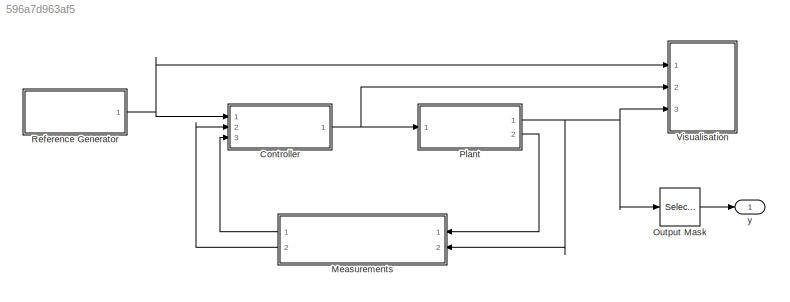
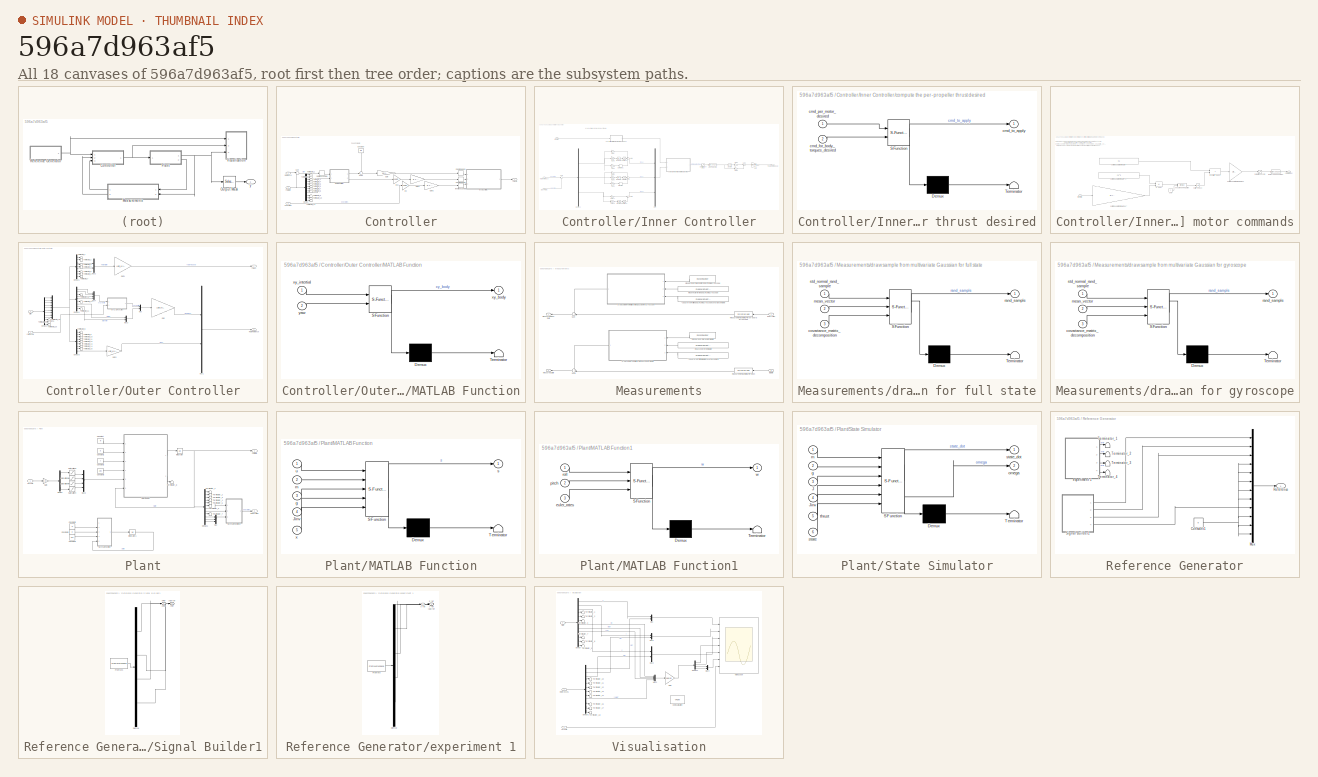
[diagram: thumbnail index - all 18 canvases of the model, root first then tree order]
MODEL slx_596a7d963af5
KIND model
CONFIG AbsTol = auto
CONFIG EnableMultiTasking = off
CONFIG FixedStep = auto
CONFIG MaxStep = auto
CONFIG MinStep = auto
CONFIG RelTol = 1e-3
CONFIG SampleTimeConstraint = Unconstrained
CONFIG Solver = VariableStepAuto
CONFIG SolverName = VariableStepAuto
CONFIG StartTime = 0.0
CONFIG StopTime = 30
WORKSPACE source: mxarray member
WORKSPACE A = [0 0 0 0 0 0 0 0 0 0 0 0 ... (144 elements, 12x12)]
WORKSPACE B = [0 0 0 0 0 37.037037037 0 0 0 0 0 0 ... (48 elements, 12x4)]
WORKSPACE J = [1.657e-05 8.3e-07 7.2e-07 8.3e-07 1.666e-05 1.8e-06 7.2e-07 1.8e-06 2.926e-05]
WORKSPACE J2 = [1.657e-05 8.3e-07 7.2e-07 8.3e-07 1.666e-05 1.8e-06 7.2e-07 1.8e-06 2.926e-05]
WORKSPACE Jinv = [60551.0873716 -2874.77601308 -1313.13007806 -2874.77601308 60562.1164038 -3654.88622001 -1313.13007806 -3654.88622001 34433.5013278]
WORKSPACE LQR_K = [0 0 0.751316534794 0 0 -0.751316534794 0 0 0.781348963993 0 0 0 ... (36 elements, 4x9)]
WORKSPACE M = [1 -0.0325269119346 -0.0325269119346 -0.00596 1 -0.0325269119346 0.0325269119346 0.00596 1 0.0325269119346 0.0325269119346 -0.00596 ... (16 elements, 4x4)]
WORKSPACE Minv = [0.25 0.25 0.25 0.25 -7.68594327377 -7.68594327377 7.68594327377 7.68594327377 -7.68594327377 7.68594327377 7.68594327377 -7.68594327377 ... (16 elements, 4x4)]
WORKSPACE NON_LIN_SIM = 1
WORKSPACE T_inner = 0.002
WORKSPACE T_outer = 0.005
WORKSPACE c1 = 6.487e-06
WORKSPACE c2 = 1.3385e-10
WORKSPACE cmd_max = 65535
WORKSPACE cmd_min = 0
WORKSPACE g = 9.81
WORKSPACE m = 0.027
WORKSPACE maxthrust = 0.1597
WORKSPACE measurement_noise_full_state_covariance_decomposition = [0 0 0 0 0 0 0 0 0 0 0 0 ... (144 elements, 12x12)]
WORKSPACE measurement_noise_full_state_covariance_matrix = [0.01 0.01 0 0 0 0 0 0 0 0 0 0 ... (144 elements, 12x12)]
WORKSPACE measurement_noise_full_state_inclusion_multiplier = 1
WORKSPACE measurement_noise_full_state_mean = [0 0 0 0 0 0 0 0 0 0 0 0]
WORKSPACE measurement_noise_full_state_seed = [50416496 3784971485 939965089 4208839476 1799084395 2945229278 4150368429 1541783849 3738425207 307511819 582526184 4040541638]
WORKSPACE measurement_noise_full_state_var = [2.5e-05 2.5e-05 0.0001 0.0001 0.0001 0.0004 3.04617419787e-06 3.04617419787e-06 1.21846967915e-05 1.21846967915e-05 1.21846967915e-05 4.87387871659e-05]
WORKSPACE measurement_noise_gyroscope_covariance_decomposition = [0.0174532925199 0 0 0 0.0174532925199 0 0 0 0.0174532925199]
WORKSPACE measurement_noise_gyroscope_covariance_matrix = [0.000304617419787 0 0 0 0.000304617419787 0 0 0 0.000304617419787]
WORKSPACE measurement_noise_gyroscope_mean = [0 0 0]
WORKSPACE measurement_noise_gyroscope_seed = [622717969 596201829 2986222409]
WORKSPACE measurement_noise_gyroscope_stddev = [0.0174532925199 0.0174532925199 0.0174532925199]
WORKSPACE measurement_noise_gyroscope_var = [0.000304617419787 0.000304617419787 0.000304617419787]
WORKSPACE nrotor_vehicle_thrust_max = [0.1597 0.1597 0.1597 0.1597]
WORKSPACE pid_x_body_rate_integrator_limit = 33.3
WORKSPACE pid_x_body_rate_ki = 500
WORKSPACE pid_x_body_rate_kp = 250
WORKSPACE pid_y_body_rate_integrator_limit = 33.3
WORKSPACE pid_y_body_rate_ki = 500
WORKSPACE pid_y_body_rate_kp = 250
WORKSPACE pid_z_body_rate_integrator_limit = 167.7
WORKSPACE pid_z_body_rate_ki = 16.7
WORKSPACE pid_z_body_rate_kp = 120
BLOCK [SubSystem] Controller
  Ports = [3, 1]
  RequestExecContextInheritance = off
BLOCK [Constant] Controller/Constant
  NameLocation = left
  Value = m*g
BLOCK [Demux] Controller/Demux
  Outputs = 12
  Ports = [1, 12]
BLOCK [Inport] Controller/Full State
  Port = 2
  PortDimensions = 12
BLOCK [Gain] Controller/Gain
  Gain = 1/4 * [ 1 1 1 1 ]
BLOCK [Gain] Controller/Gain1
  Gain = [1 -1 -1]
BLOCK [Gain] Controller/Gain2
  Gain = [1 -1 -1]
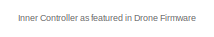
[diagram: Controller/Inner Controller - part 1/5, top left region]
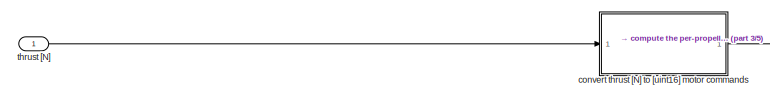
[diagram: Controller/Inner Controller - part 2/5, top left region]
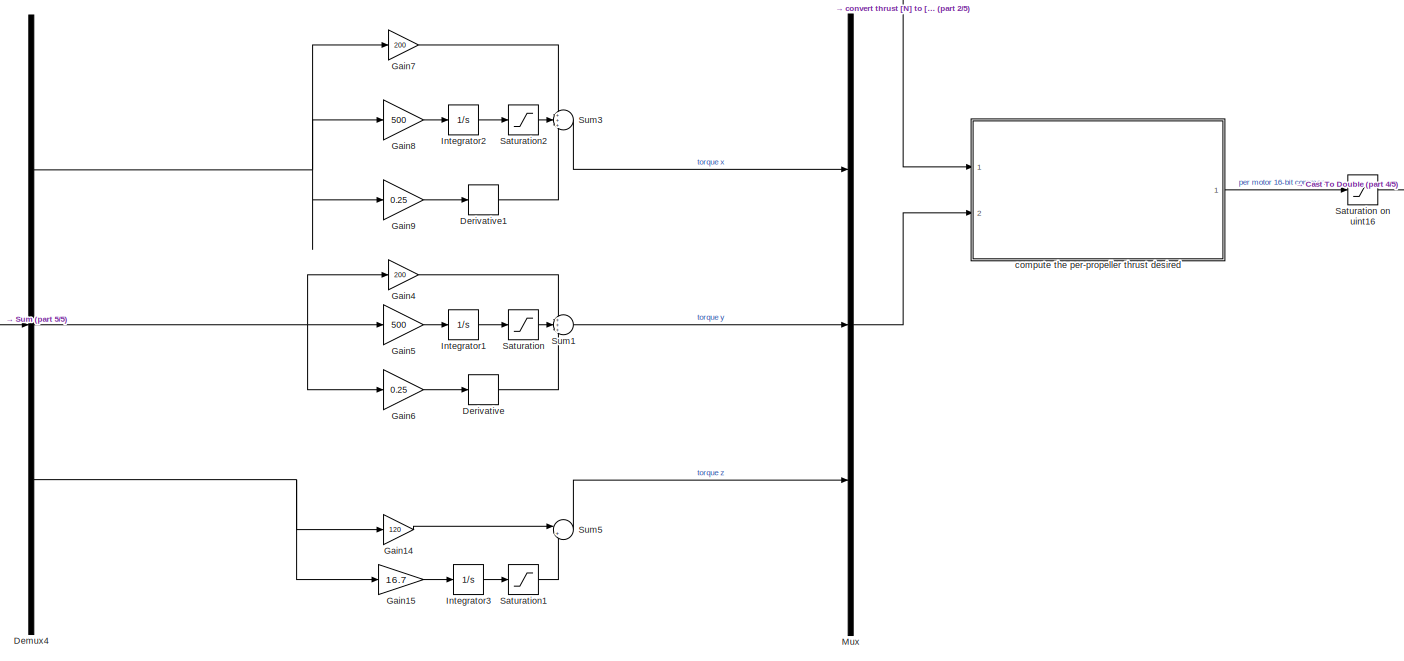
[diagram: Controller/Inner Controller - part 3/5, central region]
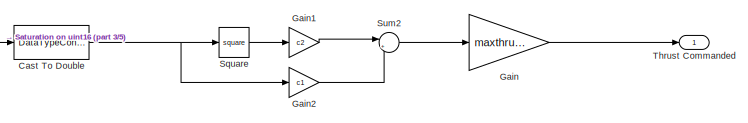
[diagram: Controller/Inner Controller - part 4/5, middle right region]
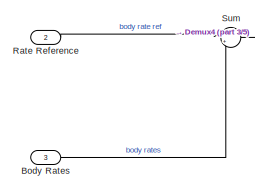
[diagram: Controller/Inner Controller - part 5/5, bottom left region]
BLOCK [SubSystem] Controller/Inner Controller
  Ports = [3, 1]
  RequestExecContextInheritance = off
BLOCK [Inport] Controller/Inner Controller/Body Rates
  Port = 3
  PortDimensions = 3
BLOCK [DataTypeConversion] Controller/Inner Controller/Cast To Double
  OutDataTypeStr = double
  RndMeth = Floor
  SaturateOnIntegerOverflow = off
BLOCK [Demux] Controller/Inner Controller/Demux4
  Outputs = 3
  Ports = [1, 3]
BLOCK [Derivative] Controller/Inner Controller/Derivative
BLOCK [Derivative] Controller/Inner Controller/Derivative1
BLOCK [Gain] Controller/Inner Controller/Gain
  Gain = maxthrust
BLOCK [Gain] Controller/Inner Controller/Gain1
  Gain = c2
BLOCK [Gain] Controller/Inner Controller/Gain14
  Gain = 120
BLOCK [Gain] Controller/Inner Controller/Gain15
  Gain = 16.7
BLOCK [Gain] Controller/Inner Controller/Gain2
  Gain = c1
BLOCK [Gain] Controller/Inner Controller/Gain4
  Gain = 200
BLOCK [Gain] Controller/Inner Controller/Gain5
  Gain = 500
BLOCK [Gain] Controller/Inner Controller/Gain6
  Gain = 0.25
BLOCK [Gain] Controller/Inner Controller/Gain7
  Gain = 200
BLOCK [Gain] Controller/Inner Controller/Gain8
  Gain = 500
BLOCK [Gain] Controller/Inner Controller/Gain9
  Gain = 0.25
BLOCK [Integrator] Controller/Inner Controller/Integrator1
  Ports = [1, 1]
BLOCK [Integrator] Controller/Inner Controller/Integrator2
  Ports = [1, 1]
BLOCK [Integrator] Controller/Inner Controller/Integrator3
  Ports = [1, 1]
BLOCK [Mux] Controller/Inner Controller/Mux
  DisplayOption = bar
  Inputs = 3
  Ports = [3, 1]
BLOCK [Inport] Controller/Inner Controller/Rate Reference
  Port = 2
  PortDimensions = 3
BLOCK [Saturate] Controller/Inner Controller/Saturation
  LowerLimit = -33.3
  UpperLimit = 33.3
BLOCK [Saturate] Controller/Inner Controller/Saturation on uint16
  LowerLimit = cmd_min
  UpperLimit = cmd_max
  ZeroCross = off
BLOCK [Saturate] Controller/Inner Controller/Saturation1
  LowerLimit = -167.7
  UpperLimit = 167.7
BLOCK [Saturate] Controller/Inner Controller/Saturation2
  LowerLimit = -33.3
  UpperLimit = 33.3
BLOCK [Math] Controller/Inner Controller/Square
  Operator = square
  Ports = [1, 1]
  SignedPower = on
BLOCK [Sum] Controller/Inner Controller/Sum
  Inputs = |+-
  Ports = [2, 1]
BLOCK [Sum] Controller/Inner Controller/Sum1
  Inputs = +++
  Ports = [3, 1]
BLOCK [Sum] Controller/Inner Controller/Sum2
  Inputs = |++
  Ports = [2, 1]
BLOCK [Sum] Controller/Inner Controller/Sum3
  Inputs = +++
  Ports = [3, 1]
BLOCK [Sum] Controller/Inner Controller/Sum5
  Inputs = |++
  Ports = [2, 1]
BLOCK [Outport] Controller/Inner Controller/Thrust Commanded
  PortDimensions = [4 1]
BLOCK [SubSystem] Controller/Inner Controller/compute the per-propeller thrust desired
  ErrorFcn = Stateflow.Translate.translate
  PermitHierarchicalResolution = ExplicitOnly
  Ports = [2, 1]
  RequestExecContextInheritance = off
  SFBlockType = MATLAB Function
  TreatAsAtomicUnit = on
BLOCK [Demux] Controller/Inner Controller/compute the per-propeller thrust desired/ Demux 
  Outputs = 1
  Ports = [1, 1]
BLOCK [S-Function] Controller/Inner Controller/compute the per-propeller thrust desired/ SFunction 
  EnableBusSupport = on
  FunctionName = sf_sfun
  PortCounts = [2 2]
  Ports = [2, 2]
  SFcnIsStateOwnerBlock = off
  SFunctionDeploymentMode = off
  Tag = Stateflow S-Function 4
BLOCK [Terminator] Controller/Inner Controller/compute the per-propeller thrust desired/ Terminator 
BLOCK [Inport] Controller/Inner Controller/compute the per-propeller thrust desired/cmd_for_body_torques_desired
  Port = 2
BLOCK [Inport] Controller/Inner Controller/compute the per-propeller thrust desired/cmd_per_motor_desired
BLOCK [Outport] Controller/Inner Controller/compute the per-propeller thrust desired/cmd_to_apply
  VectorParamsAs1DForOutWhenUnconnected = off
BLOCK [SubSystem] Controller/Inner Controller/convert thrust [N] to [uint16] motor commands
  Ports = [1, 1]
  RequestExecContextInheritance = off
BLOCK [Sum] Controller/Inner Controller/convert thrust [N] to [uint16] motor commands/-b + sqrt(b^2 - 4ac))
  IconShape = rectangular
  Ports = [2, 1]
BLOCK [DataTypeConversion] Controller/Inner Controller/convert thrust [N] to [uint16] motor commands/Data Type Conversion
  OutDataTypeStr = uint16
  RndMeth = Floor
  SaturateOnIntegerOverflow = off
BLOCK [Saturate] Controller/Inner Controller/convert thrust [N] to [uint16] motor commands/Saturation on cmd
  LowerLimit = cmd_min
  UpperLimit = cmd_max
  ZeroCross = off
BLOCK [Sum] Controller/Inner Controller/convert thrust [N] to [uint16] motor commands/b^2 - 4ac
  IconShape = rectangular
  Inputs = +-
  Ports = [2, 1]
BLOCK [Outport] Controller/Inner Controller/convert thrust [N] to [uint16] motor commands/cmd [uint16]
  VectorParamsAs1DForOutWhenUnconnected = off
BLOCK [MinMax] Controller/Inner Controller/convert thrust [N] to [uint16] motor commands/ensure non-negative
  Function = max
  Inputs = 2
  Ports = [2, 1]
BLOCK [Constant] Controller/Inner Controller/convert thrust [N] to [uint16] motor commands/part of quadratic formula: "-b"
  Value = -c1
BLOCK [Gain] Controller/Inner Controller/convert thrust [N] to [uint16] motor commands/part of quadratic formula: "1//(2a)"
  Gain = 1 / ( 2 * c2)
BLOCK [Gain] Controller/Inner Controller/convert thrust [N] to [uint16] motor commands/part of quadratic formula: "4ac"
  Gain = -(4 * c2) ./ nrotor_vehicle_thrust_max
BLOCK [Constant] Controller/Inner Controller/convert thrust [N] to [uint16] motor commands/part of quadratic formula: "b^2"
  Value = c1^2
BLOCK [Sqrt] Controller/Inner Controller/convert thrust [N] to [uint16] motor commands/sqrt(b^2 - 4ac))
BLOCK [Inport] Controller/Inner Controller/convert thrust [N] to [uint16] motor commands/thrust [N]
BLOCK [Constant] Controller/Inner Controller/convert thrust [N] to [uint16] motor commands/zero
  Value = 0
BLOCK [Inport] Controller/Inner Controller/thrust [N]
  PortDimensions = 4
BLOCK [ZeroOrderHold] Controller/Inner-loop Sample
  SampleTime = T_inner
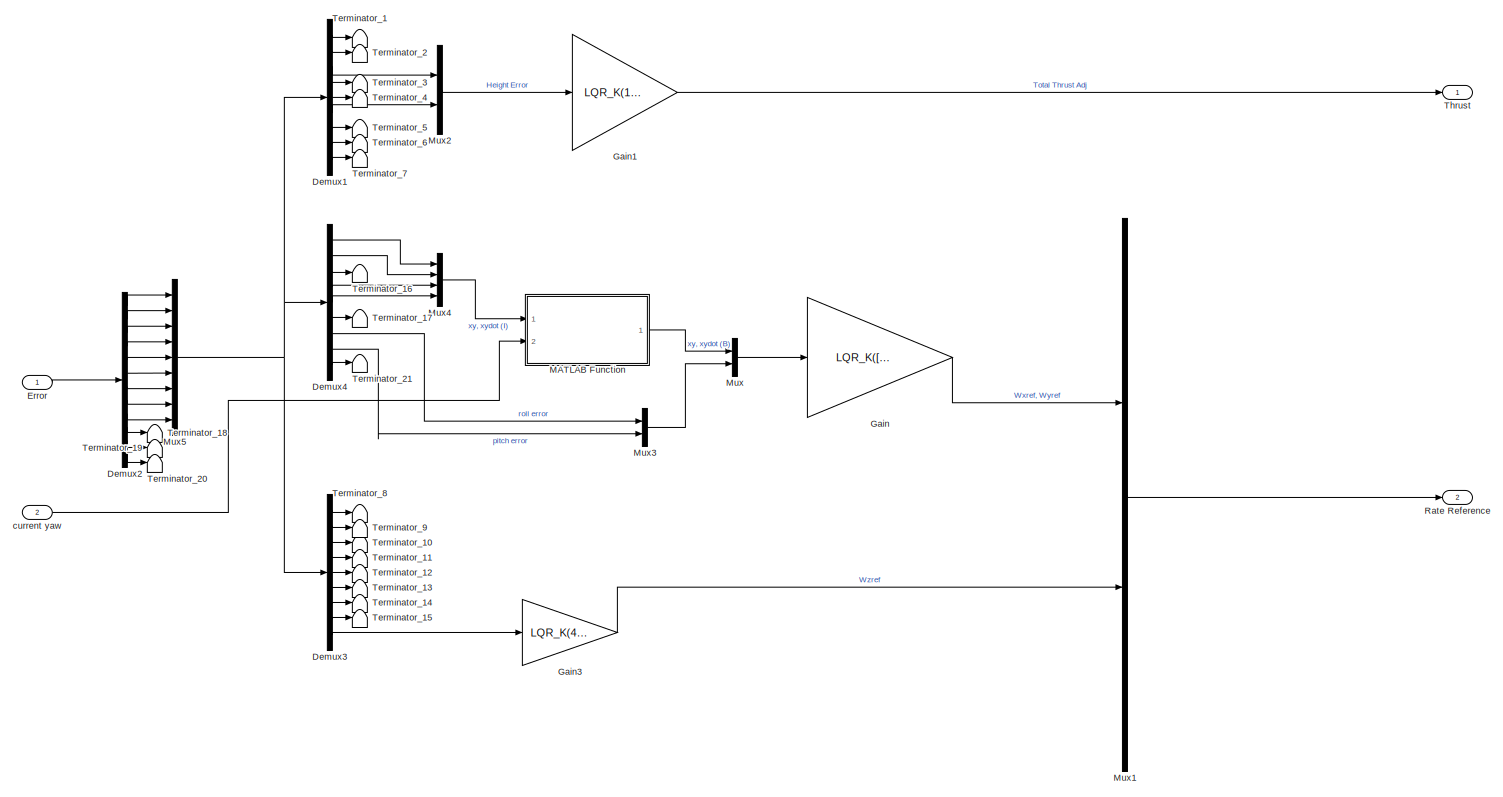
[diagram: Controller/Outer Controller - part 1/1, most of the canvas]
BLOCK [SubSystem] Controller/Outer Controller
  Ports = [2, 2]
  RequestExecContextInheritance = off
BLOCK [Demux] Controller/Outer Controller/Demux1
  Outputs = 9
  Ports = [1, 9]
BLOCK [Demux] Controller/Outer Controller/Demux2
  Outputs = 12
  Ports = [1, 12]
BLOCK [Demux] Controller/Outer Controller/Demux3
  Outputs = 9
  Ports = [1, 9]
BLOCK [Demux] Controller/Outer Controller/Demux4
  Outputs = 9
  Ports = [1, 9]
BLOCK [Inport] Controller/Outer Controller/Error
  PortDimensions = 12
BLOCK [Gain] Controller/Outer Controller/Gain
  Gain = LQR_K([2 3], [1 2 4 5 7 8])
  Multiplication = Matrix(K*u)
BLOCK [Gain] Controller/Outer Controller/Gain1
  Gain = LQR_K(1, [3, 6])
  Multiplication = Matrix(K*u)
BLOCK [Gain] Controller/Outer Controller/Gain3
  Gain = LQR_K(4,9)
  Multiplication = Matrix(K*u)
BLOCK [SubSystem] Controller/Outer Controller/MATLAB Function
  ErrorFcn = Stateflow.Translate.translate
  PermitHierarchicalResolution = ExplicitOnly
  Ports = [2, 1]
  RequestExecContextInheritance = off
  SFBlockType = MATLAB Function
  TreatAsAtomicUnit = on
BLOCK [Demux] Controller/Outer Controller/MATLAB Function/ Demux 
  Outputs = 1
  Ports = [1, 1]
BLOCK [S-Function] Controller/Outer Controller/MATLAB Function/ SFunction 
  EnableBusSupport = on
  FunctionName = sf_sfun
  PortCounts = [2 2]
  Ports = [2, 2]
  SFcnIsStateOwnerBlock = off
  SFunctionDeploymentMode = off
  Tag = Stateflow S-Function 1
BLOCK [Terminator] Controller/Outer Controller/MATLAB Function/ Terminator 
BLOCK [Outport] Controller/Outer Controller/MATLAB Function/xy_body
BLOCK [Inport] Controller/Outer Controller/MATLAB Function/xy_intertial
BLOCK [Inport] Controller/Outer Controller/MATLAB Function/yaw
  Port = 2
BLOCK [Mux] Controller/Outer Controller/Mux
  DisplayOption = bar
  Inputs = 2
  Ports = [2, 1]
BLOCK [Mux] Controller/Outer Controller/Mux1
  DisplayOption = bar
  Inputs = 2
  Ports = [2, 1]
BLOCK [Mux] Controller/Outer Controller/Mux2
  DisplayOption = bar
  Inputs = 2
  Ports = [2, 1]
BLOCK [Mux] Controller/Outer Controller/Mux3
  DisplayOption = bar
  Inputs = 2
  Ports = [2, 1]
BLOCK [Mux] Controller/Outer Controller/Mux4
  DisplayOption = bar
  Ports = [4, 1]
BLOCK [Mux] Controller/Outer Controller/Mux5
  DisplayOption = bar
  Inputs = 9
  Ports = [9, 1]
BLOCK [Outport] Controller/Outer Controller/Rate Reference
  Port = 2
  PortDimensions = 3
BLOCK [Terminator] Controller/Outer Controller/Terminator_1
BLOCK [Terminator] Controller/Outer Controller/Terminator_10
BLOCK [Terminator] Controller/Outer Controller/Terminator_11
BLOCK [Terminator] Controller/Outer Controller/Terminator_12
BLOCK [Terminator] Controller/Outer Controller/Terminator_13
BLOCK [Terminator] Controller/Outer Controller/Terminator_14
BLOCK [Terminator] Controller/Outer Controller/Terminator_15
BLOCK [Terminator] Controller/Outer Controller/Terminator_16
BLOCK [Terminator] Controller/Outer Controller/Terminator_17
BLOCK [Terminator] Controller/Outer Controller/Terminator_18
BLOCK [Terminator] Controller/Outer Controller/Terminator_19
BLOCK [Terminator] Controller/Outer Controller/Terminator_2
BLOCK [Terminator] Controller/Outer Controller/Terminator_20
BLOCK [Terminator] Controller/Outer Controller/Terminator_21
BLOCK [Terminator] Controller/Outer Controller/Terminator_3
BLOCK [Terminator] Controller/Outer Controller/Terminator_4
BLOCK [Terminator] Controller/Outer Controller/Terminator_5
BLOCK [Terminator] Controller/Outer Controller/Terminator_6
BLOCK [Terminator] Controller/Outer Controller/Terminator_7
BLOCK [Terminator] Controller/Outer Controller/Terminator_8
BLOCK [Terminator] Controller/Outer Controller/Terminator_9
BLOCK [Outport] Controller/Outer Controller/Thrust
  PortDimensions = [1 1]
BLOCK [Inport] Controller/Outer Controller/current yaw
  Port = 2
BLOCK [ZeroOrderHold] Controller/Outer-loop Sample
  SampleTime = T_outer
BLOCK [Inport] Controller/Reference
  PortDimensions = 12
BLOCK [Sum] Controller/Sum
  Inputs = |+-
  Ports = [2, 1]
BLOCK [Sum] Controller/Sum1
  Inputs = ++|
  Ports = [2, 1]
BLOCK [Terminator] Controller/Terminator_1
BLOCK [Terminator] Controller/Terminator_10
BLOCK [Terminator] Controller/Terminator_11
BLOCK [Terminator] Controller/Terminator_2
BLOCK [Terminator] Controller/Terminator_3
BLOCK [Terminator] Controller/Terminator_4
BLOCK [Terminator] Controller/Terminator_5
BLOCK [Terminator] Controller/Terminator_6
BLOCK [Terminator] Controller/Terminator_7
BLOCK [Terminator] Controller/Terminator_8
BLOCK [Terminator] Controller/Terminator_9
BLOCK [Outport] Controller/Thrusts
BLOCK [ZeroOrderHold] Controller/Zero-Order Hold1
  SampleTime = T_inner
BLOCK [ZeroOrderHold] Controller/Zero-Order Hold2
  SampleTime = T_inner
BLOCK [Inport] Controller/body rates
  Port = 3
BLOCK [Gain] Controller/r2d
  Gain = 180/pi
BLOCK [Gain] Controller/r2d1
  Gain = 180/pi
BLOCK [SubSystem] Measurements
  Commented = through
  NameLocation = top
  Ports = [2, 2]
  RequestExecContextInheritance = off
BLOCK [Constant] Measurements/"square root" of the body frame gyroscope covariance matrix
  Value = measurement_noise_gyroscope_covariance_decomposition
BLOCK [Constant] Measurements/"square root" of the full state covariance matrix
  Value = measurement_noise_full_state_covariance_decomposition
BLOCK [Outport] Measurements/Measured Body Rate
  NameLocation = top
BLOCK [Outport] Measurements/Measured State
  NameLocation = top
  Port = 2
BLOCK [Sum] Measurements/Sum
  Inputs = ++|
  NameLocation = top
  Ports = [2, 1]
BLOCK [Sum] Measurements/Sum1
  Inputs = ++|
  NameLocation = top
  Ports = [2, 1]
BLOCK [Inport] Measurements/body rates
BLOCK [SubSystem] Measurements/draw sample from multivariate Gaussian for full state
  ErrorFcn = Stateflow.Translate.translate
  PermitHierarchicalResolution = ExplicitOnly
  Ports = [3, 1]
  RequestExecContextInheritance = off
  SFBlockType = MATLAB Function
  TreatAsAtomicUnit = on
BLOCK [Demux] Measurements/draw sample from multivariate Gaussian for full state/ Demux 
  Outputs = 1
  Ports = [1, 1]
BLOCK [S-Function] Measurements/draw sample from multivariate Gaussian for full state/ SFunction 
  EnableBusSupport = on
  FunctionName = sf_sfun
  PortCounts = [3 2]
  Ports = [3, 2]
  SFcnIsStateOwnerBlock = off
  SFunctionDeploymentMode = off
  Tag = Stateflow S-Function 6
BLOCK [Terminator] Measurements/draw sample from multivariate Gaussian for full state/ Terminator 
BLOCK [Inport] Measurements/draw sample from multivariate Gaussian for full state/covariance_matrix_decomposition
  Port = 3
BLOCK [Inport] Measurements/draw sample from multivariate Gaussian for full state/mean_vector
  Port = 2
BLOCK [Outport] Measurements/draw sample from multivariate Gaussian for full state/rand_sample
  VectorParamsAs1DForOutWhenUnconnected = off
BLOCK [Inport] Measurements/draw sample from multivariate Gaussian for full state/std_normal_rand_sample
BLOCK [SubSystem] Measurements/draw sample from multivariate Gaussian for gyroscope
  ErrorFcn = Stateflow.Translate.translate
  PermitHierarchicalResolution = ExplicitOnly
  Ports = [3, 1]
  RequestExecContextInheritance = off
  SFBlockType = MATLAB Function
  TreatAsAtomicUnit = on
BLOCK [Demux] Measurements/draw sample from multivariate Gaussian for gyroscope/ Demux 
  Outputs = 1
  Ports = [1, 1]
BLOCK [S-Function] Measurements/draw sample from multivariate Gaussian for gyroscope/ SFunction 
  EnableBusSupport = on
  FunctionName = sf_sfun
  PortCounts = [3 2]
  Ports = [3, 2]
  SFcnIsStateOwnerBlock = off
  SFunctionDeploymentMode = off
  Tag = Stateflow S-Function 7
BLOCK [Terminator] Measurements/draw sample from multivariate Gaussian for gyroscope/ Terminator 
BLOCK [Inport] Measurements/draw sample from multivariate Gaussian for gyroscope/covariance_matrix_decomposition
  Port = 3
BLOCK [Inport] Measurements/draw sample from multivariate Gaussian for gyroscope/mean_vector
  Port = 2
BLOCK [Outport] Measurements/draw sample from multivariate Gaussian for gyroscope/rand_sample
  VectorParamsAs1DForOutWhenUnconnected = off
BLOCK [Inport] Measurements/draw sample from multivariate Gaussian for gyroscope/std_normal_rand_sample
BLOCK [Inport] Measurements/full state
  Port = 2
BLOCK [Constant] Measurements/mean vector for the body frame gyroscope
  Value = measurement_noise_gyroscope_mean
BLOCK [Constant] Measurements/mean vector for the full state
  Value = measurement_noise_full_state_mean
BLOCK [ZeroOrderHold] Measurements/measurement sampling > for Vicon
  SampleTime = T_outer
BLOCK [ZeroOrderHold] Measurements/measurement sampling > for on-board gyroscope
  SampleTime = T_inner
BLOCK [RandomNumber] Measurements/standard normal rand for body frame gyroscope
  Mean = measurement_noise_gyroscope_mean
  SampleTime = T_inner
  Seed = measurement_noise_gyroscope_seed
  Variance = measurement_noise_gyroscope_var
  VectorParams1D = off
BLOCK [RandomNumber] Measurements/standard normal rand for full state
  Mean = zeros(12,1)
  SampleTime = T_outer
  Seed = measurement_noise_full_state_seed
  Variance = ones(12,1)
  VectorParams1D = off
BLOCK [Selector] Output Mask
  IndexOptions = Index vector (dialog)
  Indices = [1 2 3 9]
  InputPortWidth = 12
  OutputSizes = 1
  Ports = [1, 1]
BLOCK [SubSystem] Plant
  Ports = [1, 2]
  RequestExecContextInheritance = off
BLOCK [Constant] Plant/Constant
  Value = m
BLOCK [Constant] Plant/Constant1
  Value = g
BLOCK [Constant] Plant/Constant2
  Value = J
BLOCK [Constant] Plant/Constant3
  Value = Jinv
BLOCK [Constant] Plant/Constant4
  Value = Jinv
BLOCK [Constant] Plant/Constant5
  Value = m
BLOCK [Constant] Plant/Constant6
  Value = g
BLOCK [Demux] Plant/Demux
  Ports = [1, 4]
BLOCK [Demux] Plant/Demux1
  Outputs = 12
  Ports = [1, 12]
BLOCK [Outport] Plant/Full State
  NameLocation = top
  PortDimensions = 12
BLOCK [Gain] Plant/Gain
  Gain = M
  Multiplication = Matrix(K*u)
BLOCK [Integrator] Plant/Integrator
  Ports = [1, 1]
BLOCK [Integrator] Plant/Integrator1
  Ports = [1, 1]
BLOCK [SubSystem] Plant/MATLAB Function
  Commented = on
  ErrorFcn = Stateflow.Translate.translate
  PermitHierarchicalResolution = ExplicitOnly
  Ports = [5, 1]
  RequestExecContextInheritance = off
  SFBlockType = MATLAB Function
  TreatAsAtomicUnit = on
BLOCK [Demux] Plant/MATLAB Function/ Demux 
  Outputs = 1
  Ports = [1, 1]
BLOCK [S-Function] Plant/MATLAB Function/ SFunction 
  EnableBusSupport = on
  FunctionName = sf_sfun
  PortCounts = [5 2]
  Ports = [5, 2]
  SFcnIsStateOwnerBlock = off
  SFunctionDeploymentMode = off
  Tag = Stateflow S-Function 3
BLOCK [Terminator] Plant/MATLAB Function/ Terminator 
BLOCK [Inport] Plant/MATLAB Function/Jinv
  Port = 4
BLOCK [Inport] Plant/MATLAB Function/g
  Port = 3
BLOCK [Inport] Plant/MATLAB Function/m
  Port = 2
BLOCK [Outport] Plant/MATLAB Function/s
BLOCK [Inport] Plant/MATLAB Function/u
BLOCK [Inport] Plant/MATLAB Function/x
  Port = 5
BLOCK [SubSystem] Plant/MATLAB Function1
  ErrorFcn = Stateflow.Translate.translate
  PermitHierarchicalResolution = ExplicitOnly
  Ports = [3, 1]
  RequestExecContextInheritance = off
  SFBlockType = MATLAB Function
  TreatAsAtomicUnit = on
BLOCK [Demux] Plant/MATLAB Function1/ Demux 
  Outputs = 1
  Ports = [1, 1]
BLOCK [S-Function] Plant/MATLAB Function1/ SFunction 
  EnableBusSupport = on
  FunctionName = sf_sfun
  PortCounts = [3 2]
  Ports = [3, 2]
  SFcnIsStateOwnerBlock = off
  SFunctionDeploymentMode = off
  Tag = Stateflow S-Function 8
BLOCK [Terminator] Plant/MATLAB Function1/ Terminator 
BLOCK [Inport] Plant/MATLAB Function1/euler_rates
  Port = 3
BLOCK [Inport] Plant/MATLAB Function1/pitch
  Port = 2
BLOCK [Inport] Plant/MATLAB Function1/roll
BLOCK [Outport] Plant/MATLAB Function1/w
BLOCK [Mux] Plant/Mux
  DisplayOption = bar
  Inputs = 3
  Ports = [3, 1]
BLOCK [Mux] Plant/Mux3
  DisplayOption = bar
  Ports = [4, 1]
BLOCK [Saturate] Plant/Saturation3
  LowerLimit = 0
  UpperLimit = 4*maxthrust
BLOCK [Saturate] Plant/Saturation4
  LowerLimit = -0.0119*maxthrust
  UpperLimit = 0.0119*maxthrust
BLOCK [Saturate] Plant/Saturation5
  LowerLimit = -0.0651*maxthrust
  UpperLimit = 0.0651*maxthrust
BLOCK [Saturate] Plant/Saturation6
  LowerLimit = -0.0651*maxthrust
  UpperLimit = 0.0651*maxthrust
BLOCK [SubSystem] Plant/State Simulator
  ErrorFcn = Stateflow.Translate.translate
  PermitHierarchicalResolution = ExplicitOnly
  Ports = [6, 2]
  RequestExecContextInheritance = off
  SFBlockType = MATLAB Function
  TreatAsAtomicUnit = on
BLOCK [Demux] Plant/State Simulator/ Demux 
  Outputs = 1
  Ports = [1, 1]
BLOCK [S-Function] Plant/State Simulator/ SFunction 
  EnableBusSupport = on
  FunctionName = sf_sfun
  PortCounts = [6 3]
  Ports = [6, 3]
  SFcnIsStateOwnerBlock = off
  SFunctionDeploymentMode = off
  Tag = Stateflow S-Function 2
BLOCK [Terminator] Plant/State Simulator/ Terminator 
BLOCK [Inport] Plant/State Simulator/J
  Port = 3
BLOCK [Inport] Plant/State Simulator/Jinv
  Port = 4
BLOCK [Inport] Plant/State Simulator/g
  Port = 2
BLOCK [Inport] Plant/State Simulator/m
BLOCK [Outport] Plant/State Simulator/omega
  Port = 2
BLOCK [Inport] Plant/State Simulator/state
  Port = 6
BLOCK [Outport] Plant/State Simulator/state_dot
BLOCK [Inport] Plant/State Simulator/thrust
  Port = 5
BLOCK [Terminator] Plant/Terminator_1
BLOCK [Terminator] Plant/Terminator_2
BLOCK [Terminator] Plant/Terminator_3
BLOCK [Terminator] Plant/Terminator_4
BLOCK [Terminator] Plant/Terminator_5
BLOCK [Terminator] Plant/Terminator_6
BLOCK [Terminator] Plant/Terminator_7
BLOCK [Terminator] Plant/Terminator_8
BLOCK [Inport] Plant/Thrusts
  PortDimensions = [4 1]
BLOCK [Outport] Plant/body rates
  Port = 2
BLOCK [SubSystem] Reference Generator
  Ports = [0, 1]
  RequestExecContextInheritance = off
BLOCK [Constant] Reference Generator/Constant1
  Value = 0
BLOCK [Mux] Reference Generator/Mux
  DisplayOption = bar
  Inputs = 12
  Ports = [12, 1]
BLOCK [Outport] Reference Generator/Reference
BLOCK [SubSystem] Reference Generator/Signal Builder1
  ClipboardFcn = sigbuilder_block('clipboard');
  CloseFcn = sigbuilder_block('close');
  ContinueFcn = sigbuilder_block('continue');
  CopyFcn = sigbuilder_block('copy');
  DeleteFcn = sigbuilder_block('delete');
  LoadFcn = sigbuilder_block('load');
  MaskHideContents = on
  ModelCloseFcn = sigbuilder_block('modelClose');
  NameChangeFcn = sigbuilder_block('namechange');
  OpenFcn = sigbuilder_block('open',[4.875 30 1115.25 631.875 ]);
  PauseFcn = sigbuilder_block('pause');
  Ports = [0, 4]
  PreSaveFcn = sigbuilder_block('preSave');
  RequestExecContextInheritance = off
  StartFcn = sigbuilder_block('start');
  StopFcn = sigbuilder_block('stop');
  Tag = STV Subsys
BLOCK [Demux] Reference Generator/Signal Builder1/Demux
  DisplayOption = none
  Ports = [1, 4]
  Tag = STV Demux
BLOCK [FromWorkspace] Reference Generator/Signal Builder1/FromWs
  Tag = STV FromWs
  VariableName = tuvar
BLOCK [Outport] Reference Generator/Signal Builder1/xRef
  Tag = STV Outport
BLOCK [Outport] Reference Generator/Signal Builder1/yRef
  Port = 2
  Tag = STV Outport
BLOCK [Outport] Reference Generator/Signal Builder1/yaw ref
  Port = 4
  Tag = STV Outport
BLOCK [Outport] Reference Generator/Signal Builder1/zRef
  Port = 3
  Tag = STV Outport
BLOCK [Terminator] Reference Generator/Terminator_1
BLOCK [Terminator] Reference Generator/Terminator_2
BLOCK [Terminator] Reference Generator/Terminator_3
BLOCK [Terminator] Reference Generator/Terminator_4
BLOCK [SubSystem] Reference Generator/experiment 1
  ClipboardFcn = sigbuilder_block('clipboard');
  CloseFcn = sigbuilder_block('close');
  ContinueFcn = sigbuilder_block('continue');
  CopyFcn = sigbuilder_block('copy');
  DeleteFcn = sigbuilder_block('delete');
  LoadFcn = sigbuilder_block('load');
  MaskHideContents = on
  ModelCloseFcn = sigbuilder_block('modelClose');
  NameChangeFcn = sigbuilder_block('namechange');
  OpenFcn = sigbuilder_block('open',[4.875 30 1115.25 631.875 ]);
  PauseFcn = sigbuilder_block('pause');
  Ports = [0, 4]
  PreSaveFcn = sigbuilder_block('preSave');
  RequestExecContextInheritance = off
  StartFcn = sigbuilder_block('start');
  StopFcn = sigbuilder_block('stop');
  Tag = STV Subsys
BLOCK [Demux] Reference Generator/experiment 1/Demux
  DisplayOption = none
  Ports = [1, 4]
  Tag = STV Demux
BLOCK [FromWorkspace] Reference Generator/experiment 1/FromWs
  Tag = STV FromWs
  VariableName = tuvar
BLOCK [Outport] Reference Generator/experiment 1/x ref
  Tag = STV Outport
BLOCK [Outport] Reference Generator/experiment 1/y ref
  Port = 2
  Tag = STV Outport
BLOCK [Outport] Reference Generator/experiment 1/yaw ref
  Port = 4
  Tag = STV Outport
BLOCK [Outport] Reference Generator/experiment 1/z ref
  Port = 3
  Tag = STV Outport
BLOCK [SubSystem] Visualisation
  Ports = [3]
  RequestExecContextInheritance = off
BLOCK [Reference] Visualisation/3D Visualisation  REF=vrlib/VR Sink
  Commented = on
  InstantiateOnLoad = on
  Ports = []
  SourceBlock = vrlib/VR Sink
  SourceProductBaseCode = SL
  SourceType = Virtual Reality Sink
BLOCK [Demux] Visualisation/Demux
  Outputs = 12
  Ports = [1, 12]
BLOCK [Demux] Visualisation/Demux1
  Outputs = 12
  Ports = [1, 12]
BLOCK [Demux] Visualisation/Demux2
  Ports = [1, 4]
BLOCK [Gain] Visualisation/Gain
  Gain = 180/pi
BLOCK [Scope] Visualisation/Main Scope
  Floating = off
  NumInputPorts = 7
  Ports = [7]
  ScopeSpecificationString = Simulink.scopes.TimeScopeBlockCfg('CurrentConfiguration', extmgr.ConfigurationSet(extmgr.Configuration('Core','General UI',true,'FigureColor',[1 1 1]),extmgr.Configuration('Core','Source UI',true),extmgr.Configuration('Sources','WiredSimulink',true),extmgr.Configuration('Visuals','Time Domain',true,'PlotType','Stairs','SerializedDisplays',{struct('MinYLimReal','-0.146','MaxYLimReal','1.19271','YLa...<+7583ch>
BLOCK [Mux] Visualisation/Mux
  DisplayOption = bar
  Inputs = 2
  Ports = [2, 1]
BLOCK [Mux] Visualisation/Mux1
  DisplayOption = bar
  Inputs = 2
  Ports = [2, 1]
BLOCK [Mux] Visualisation/Mux2
  DisplayOption = bar
  Inputs = 2
  Ports = [2, 1]
BLOCK [Mux] Visualisation/Mux3
  DisplayOption = bar
  Ports = [4, 1]
BLOCK [Mux] Visualisation/Mux4
  DisplayOption = bar
  Inputs = 2
  Ports = [2, 1]
BLOCK [Inport] Visualisation/References
BLOCK [Inport] Visualisation/State
  Port = 3
BLOCK [Terminator] Visualisation/Terminator_1
BLOCK [Terminator] Visualisation/Terminator_10
BLOCK [Terminator] Visualisation/Terminator_11
BLOCK [Terminator] Visualisation/Terminator_12
BLOCK [Terminator] Visualisation/Terminator_13
BLOCK [Terminator] Visualisation/Terminator_14
BLOCK [Terminator] Visualisation/Terminator_16
BLOCK [Terminator] Visualisation/Terminator_17
BLOCK [Terminator] Visualisation/Terminator_18
BLOCK [Terminator] Visualisation/Terminator_2
BLOCK [Terminator] Visualisation/Terminator_3
BLOCK [Terminator] Visualisation/Terminator_7
BLOCK [Terminator] Visualisation/Terminator_8
BLOCK [Terminator] Visualisation/Terminator_9
BLOCK [Inport] Visualisation/Thrusts
  Port = 2
BLOCK [Outport] y
ANNOTATION Controller: Feed Forward
ANNOTATION Controller/Inner Controller: Inner Controller as featured in Drone Firmware
ANNOTATION Controller/Inner Controller/convert thrust [N] to [uint16] motor commands: CONVERT THRUST IN NEWTONS TO MOTOR COMMAND AS uint16 VALUE > This find the positive solution of the equation: thust [N] = nrotor_vehicle_thrust_max * ( cmd_2_newtons_conversion_quadratic_coefficient * cmd^2 + cmd_2_newtons_conversion_linear_coefficient * cmd ) > This sub-system acts element-wise on the input, i.e., the output is a vector of the same length as the input
LINE Controller/Constant:1 -> Controller/Sum1:1
LINE Controller/Demux:1 -> Controller/Terminator_1:1
LINE Controller/Demux:10 -> Controller/Terminator_9:1
LINE Controller/Demux:11 -> Controller/Terminator_10:1
LINE Controller/Demux:12 -> Controller/Terminator_11:1
LINE Controller/Demux:2 -> Controller/Terminator_2:1
LINE Controller/Demux:3 -> Controller/Terminator_3:1
LINE Controller/Demux:4 -> Controller/Terminator_4:1
LINE Controller/Demux:5 -> Controller/Terminator_5:1
LINE Controller/Demux:6 -> Controller/Terminator_6:1
LINE Controller/Demux:7 -> Controller/Terminator_7:1
LINE Controller/Demux:8 -> Controller/Terminator_8:1
LINE Controller/Demux:9 -> Controller/Outer Controller:2
NET Controller/Full State:1 -> Controller/Demux:1, Controller/Sum:2
LINE Controller/Gain1:1 -> Controller/Zero-Order Hold2:1
LINE Controller/Gain2:1 -> Controller/Inner-loop Sample:1
LINE Controller/Gain:1 -> Controller/Zero-Order Hold1:1
LINE Controller/Inner Controller/Body Rates:1 -> Controller/Inner Controller/Sum:2
NET Controller/Inner Controller/Cast To Double:1 -> Controller/Inner Controller/Gain2:1, Controller/Inner Controller/Square:1
NET Controller/Inner Controller/Demux4:1 -> Controller/Inner Controller/Gain7:1, Controller/Inner Controller/Gain8:1, Controller/Inner Controller/Gain9:1
NET Controller/Inner Controller/Demux4:2 -> Controller/Inner Controller/Gain4:1, Controller/Inner Controller/Gain5:1, Controller/Inner Controller/Gain6:1
NET Controller/Inner Controller/Demux4:3 -> Controller/Inner Controller/Gain14:1, Controller/Inner Controller/Gain15:1
LINE Controller/Inner Controller/Derivative1:1 -> Controller/Inner Controller/Sum3:3
LINE Controller/Inner Controller/Derivative:1 -> Controller/Inner Controller/Sum1:3
LINE Controller/Inner Controller/Gain14:1 -> Controller/Inner Controller/Sum5:1
LINE Controller/Inner Controller/Gain15:1 -> Controller/Inner Controller/Integrator3:1
LINE Controller/Inner Controller/Gain1:1 -> Controller/Inner Controller/Sum2:1
LINE Controller/Inner Controller/Gain2:1 -> Controller/Inner Controller/Sum2:2
LINE Controller/Inner Controller/Gain4:1 -> Controller/Inner Controller/Sum1:1
LINE Controller/Inner Controller/Gain5:1 -> Controller/Inner Controller/Integrator1:1
LINE Controller/Inner Controller/Gain6:1 -> Controller/Inner Controller/Derivative:1
LINE Controller/Inner Controller/Gain7:1 -> Controller/Inner Controller/Sum3:1
LINE Controller/Inner Controller/Gain8:1 -> Controller/Inner Controller/Integrator2:1
LINE Controller/Inner Controller/Gain9:1 -> Controller/Inner Controller/Derivative1:1
LINE Controller/Inner Controller/Gain:1 -> Controller/Inner Controller/Thrust Commanded:1
LINE Controller/Inner Controller/Integrator1:1 -> Controller/Inner Controller/Saturation:1
LINE Controller/Inner Controller/Integrator2:1 -> Controller/Inner Controller/Saturation2:1
LINE Controller/Inner Controller/Integrator3:1 -> Controller/Inner Controller/Saturation1:1
LINE Controller/Inner Controller/Mux:1 -> Controller/Inner Controller/compute the per-propeller thrust desired:2
LINE Controller/Inner Controller/Rate Reference:1 -> Controller/Inner Controller/Sum:1
LINE Controller/Inner Controller/Saturation on uint16:1 -> Controller/Inner Controller/Cast To Double:1
LINE Controller/Inner Controller/Saturation1:1 -> Controller/Inner Controller/Sum5:2
LINE Controller/Inner Controller/Saturation2:1 -> Controller/Inner Controller/Sum3:2
LINE Controller/Inner Controller/Saturation:1 -> Controller/Inner Controller/Sum1:2
LINE Controller/Inner Controller/Square:1 -> Controller/Inner Controller/Gain1:1
LINE Controller/Inner Controller/Sum1:1 -> Controller/Inner Controller/Mux:2
LINE Controller/Inner Controller/Sum2:1 -> Controller/Inner Controller/Gain:1
LINE Controller/Inner Controller/Sum3:1 -> Controller/Inner Controller/Mux:1
LINE Controller/Inner Controller/Sum5:1 -> Controller/Inner Controller/Mux:3
LINE Controller/Inner Controller/Sum:1 -> Controller/Inner Controller/Demux4:1
LINE Controller/Inner Controller/compute the per-propeller thrust desired:1 -> Controller/Inner Controller/Saturation on uint16:1
LINE Controller/Inner Controller/convert thrust [N] to [uint16] motor commands/-b + sqrt(b^2 - 4ac)):1 -> Controller/Inner Controller/convert thrust [N] to [uint16] motor commands/part of quadratic formula: "1//(2a)":1
LINE Controller/Inner Controller/convert thrust [N] to [uint16] motor commands/Data Type Conversion:1 -> Controller/Inner Controller/convert thrust [N] to [uint16] motor commands/cmd [uint16]:1
LINE Controller/Inner Controller/convert thrust [N] to [uint16] motor commands/Saturation on cmd:1 -> Controller/Inner Controller/convert thrust [N] to [uint16] motor commands/Data Type Conversion:1
LINE Controller/Inner Controller/convert thrust [N] to [uint16] motor commands/b^2 - 4ac:1 -> Controller/Inner Controller/convert thrust [N] to [uint16] motor commands/ensure non-negative:1
LINE Controller/Inner Controller/convert thrust [N] to [uint16] motor commands/ensure non-negative:1 -> Controller/Inner Controller/convert thrust [N] to [uint16] motor commands/sqrt(b^2 - 4ac)):1
LINE Controller/Inner Controller/convert thrust [N] to [uint16] motor commands/part of quadratic formula: "-b":1 -> Controller/Inner Controller/convert thrust [N] to [uint16] motor commands/-b + sqrt(b^2 - 4ac)):1
LINE Controller/Inner Controller/convert thrust [N] to [uint16] motor commands/part of quadratic formula: "1//(2a)":1 -> Controller/Inner Controller/convert thrust [N] to [uint16] motor commands/Saturation on cmd:1
LINE Controller/Inner Controller/convert thrust [N] to [uint16] motor commands/part of quadratic formula: "4ac":1 -> Controller/Inner Controller/convert thrust [N] to [uint16] motor commands/b^2 - 4ac:2
LINE Controller/Inner Controller/convert thrust [N] to [uint16] motor commands/part of quadratic formula: "b^2":1 -> Controller/Inner Controller/convert thrust [N] to [uint16] motor commands/b^2 - 4ac:1
LINE Controller/Inner Controller/convert thrust [N] to [uint16] motor commands/sqrt(b^2 - 4ac)):1 -> Controller/Inner Controller/convert thrust [N] to [uint16] motor commands/-b + sqrt(b^2 - 4ac)):2
LINE Controller/Inner Controller/convert thrust [N] to [uint16] motor commands/thrust [N]:1 -> Controller/Inner Controller/convert thrust [N] to [uint16] motor commands/part of quadratic formula: "4ac":1
LINE Controller/Inner Controller/convert thrust [N] to [uint16] motor commands/zero:1 -> Controller/Inner Controller/convert thrust [N] to [uint16] motor commands/ensure non-negative:2
LINE Controller/Inner Controller/convert thrust [N] to [uint16] motor commands:1 -> Controller/Inner Controller/compute the per-propeller thrust desired:1
LINE Controller/Inner Controller/thrust [N]:1 -> Controller/Inner Controller/convert thrust [N] to [uint16] motor commands:1
LINE Controller/Inner Controller:1 -> Controller/Thrusts:1
LINE Controller/Inner-loop Sample:1 -> Controller/Inner Controller:3
LINE Controller/Outer Controller/Demux1:1 -> Controller/Outer Controller/Terminator_1:1
LINE Controller/Outer Controller/Demux1:2 -> Controller/Outer Controller/Terminator_2:1
LINE Controller/Outer Controller/Demux1:3 -> Controller/Outer Controller/Mux2:1
LINE Controller/Outer Controller/Demux1:4 -> Controller/Outer Controller/Terminator_3:1
LINE Controller/Outer Controller/Demux1:5 -> Controller/Outer Controller/Terminator_4:1
LINE Controller/Outer Controller/Demux1:6 -> Controller/Outer Controller/Mux2:2
LINE Controller/Outer Controller/Demux1:7 -> Controller/Outer Controller/Terminator_5:1
LINE Controller/Outer Controller/Demux1:8 -> Controller/Outer Controller/Terminator_6:1
LINE Controller/Outer Controller/Demux1:9 -> Controller/Outer Controller/Terminator_7:1
LINE Controller/Outer Controller/Demux2:1 -> Controller/Outer Controller/Mux5:1
LINE Controller/Outer Controller/Demux2:10 -> Controller/Outer Controller/Terminator_18:1
LINE Controller/Outer Controller/Demux2:11 -> Controller/Outer Controller/Terminator_19:1
LINE Controller/Outer Controller/Demux2:12 -> Controller/Outer Controller/Terminator_20:1
LINE Controller/Outer Controller/Demux2:2 -> Controller/Outer Controller/Mux5:2
LINE Controller/Outer Controller/Demux2:3 -> Controller/Outer Controller/Mux5:3
LINE Controller/Outer Controller/Demux2:4 -> Controller/Outer Controller/Mux5:4
LINE Controller/Outer Controller/Demux2:5 -> Controller/Outer Controller/Mux5:5
LINE Controller/Outer Controller/Demux2:6 -> Controller/Outer Controller/Mux5:6
LINE Controller/Outer Controller/Demux2:7 -> Controller/Outer Controller/Mux5:7
LINE Controller/Outer Controller/Demux2:8 -> Controller/Outer Controller/Mux5:8
LINE Controller/Outer Controller/Demux2:9 -> Controller/Outer Controller/Mux5:9
LINE Controller/Outer Controller/Demux3:1 -> Controller/Outer Controller/Terminator_8:1
LINE Controller/Outer Controller/Demux3:2 -> Controller/Outer Controller/Terminator_9:1
LINE Controller/Outer Controller/Demux3:3 -> Controller/Outer Controller/Terminator_10:1
LINE Controller/Outer Controller/Demux3:4 -> Controller/Outer Controller/Terminator_11:1
LINE Controller/Outer Controller/Demux3:5 -> Controller/Outer Controller/Terminator_12:1
LINE Controller/Outer Controller/Demux3:6 -> Controller/Outer Controller/Terminator_13:1
LINE Controller/Outer Controller/Demux3:7 -> Controller/Outer Controller/Terminator_14:1
LINE Controller/Outer Controller/Demux3:8 -> Controller/Outer Controller/Terminator_15:1
LINE Controller/Outer Controller/Demux3:9 -> Controller/Outer Controller/Gain3:1
LINE Controller/Outer Controller/Demux4:1 -> Controller/Outer Controller/Mux4:1
LINE Controller/Outer Controller/Demux4:2 -> Controller/Outer Controller/Mux4:2
LINE Controller/Outer Controller/Demux4:3 -> Controller/Outer Controller/Terminator_16:1
LINE Controller/Outer Controller/Demux4:4 -> Controller/Outer Controller/Mux4:3
LINE Controller/Outer Controller/Demux4:5 -> Controller/Outer Controller/Mux4:4
LINE Controller/Outer Controller/Demux4:6 -> Controller/Outer Controller/Terminator_17:1
LINE Controller/Outer Controller/Demux4:7 -> Controller/Outer Controller/Mux3:1
LINE Controller/Outer Controller/Demux4:8 -> Controller/Outer Controller/Mux3:2
LINE Controller/Outer Controller/Demux4:9 -> Controller/Outer Controller/Terminator_21:1
LINE Controller/Outer Controller/Error:1 -> Controller/Outer Controller/Demux2:1
LINE Controller/Outer Controller/Gain1:1 -> Controller/Outer Controller/Thrust:1
LINE Controller/Outer Controller/Gain3:1 -> Controller/Outer Controller/Mux1:2
LINE Controller/Outer Controller/Gain:1 -> Controller/Outer Controller/Mux1:1
LINE Controller/Outer Controller/MATLAB Function:1 -> Controller/Outer Controller/Mux:1
LINE Controller/Outer Controller/Mux1:1 -> Controller/Outer Controller/Rate Reference:1
LINE Controller/Outer Controller/Mux2:1 -> Controller/Outer Controller/Gain1:1
LINE Controller/Outer Controller/Mux3:1 -> Controller/Outer Controller/Mux:2
LINE Controller/Outer Controller/Mux4:1 -> Controller/Outer Controller/MATLAB Function:1
NET Controller/Outer Controller/Mux5:1 -> Controller/Outer Controller/Demux1:1, Controller/Outer Controller/Demux3:1, Controller/Outer Controller/Demux4:1
LINE Controller/Outer Controller/Mux:1 -> Controller/Outer Controller/Gain:1
LINE Controller/Outer Controller/current yaw:1 -> Controller/Outer Controller/MATLAB Function:2
LINE Controller/Outer Controller:1 -> Controller/Sum1:2
LINE Controller/Outer Controller:2 -> Controller/r2d1:1
LINE Controller/Outer-loop Sample:1 -> Controller/Outer Controller:1
LINE Controller/Reference:1 -> Controller/Sum:1
LINE Controller/Sum1:1 -> Controller/Gain:1
LINE Controller/Sum:1 -> Controller/Outer-loop Sample:1
LINE Controller/Zero-Order Hold1:1 -> Controller/Inner Controller:1
LINE Controller/Zero-Order Hold2:1 -> Controller/Inner Controller:2
LINE Controller/body rates:1 -> Controller/r2d:1
LINE Controller/r2d1:1 -> Controller/Gain1:1
LINE Controller/r2d:1 -> Controller/Gain2:1
NET Controller:1 -> Plant:1, Visualisation:2
LINE Measurements/"square root" of the body frame gyroscope covariance matrix:1 -> Measurements/draw sample from multivariate Gaussian for gyroscope:3
LINE Measurements/"square root" of the full state covariance matrix:1 -> Measurements/draw sample from multivariate Gaussian for full state:3
LINE Measurements/Sum1:1 -> Measurements/Measured State:1
LINE Measurements/Sum:1 -> Measurements/Measured Body Rate:1
LINE Measurements/body rates:1 -> Measurements/measurement sampling > for on-board gyroscope:1
LINE Measurements/draw sample from multivariate Gaussian for full state:1 -> Measurements/Sum1:1
LINE Measurements/draw sample from multivariate Gaussian for gyroscope:1 -> Measurements/Sum:1
LINE Measurements/full state:1 -> Measurements/measurement sampling > for Vicon:1
LINE Measurements/mean vector for the body frame gyroscope:1 -> Measurements/draw sample from multivariate Gaussian for gyroscope:2
LINE Measurements/mean vector for the full state:1 -> Measurements/draw sample from multivariate Gaussian for full state:2
LINE Measurements/measurement sampling > for Vicon:1 -> Measurements/Sum1:2
LINE Measurements/measurement sampling > for on-board gyroscope:1 -> Measurements/Sum:2
LINE Measurements/standard normal rand for body frame gyroscope:1 -> Measurements/draw sample from multivariate Gaussian for gyroscope:1
LINE Measurements/standard normal rand for full state:1 -> Measurements/draw sample from multivariate Gaussian for full state:1
LINE Measurements:1 -> Controller:3
LINE Measurements:2 -> Controller:2
LINE Output Mask:1 -> y:1
LINE Plant/Constant1:1 -> Plant/State Simulator:2
LINE Plant/Constant2:1 -> Plant/State Simulator:3
LINE Plant/Constant3:1 -> Plant/State Simulator:4
LINE Plant/Constant4:1 -> Plant/MATLAB Function:4
LINE Plant/Constant5:1 -> Plant/MATLAB Function:2
LINE Plant/Constant6:1 -> Plant/MATLAB Function:3
LINE Plant/Constant:1 -> Plant/State Simulator:1
LINE Plant/Demux1:1 -> Plant/Terminator_1:1
LINE Plant/Demux1:10 -> Plant/Mux:1
LINE Plant/Demux1:11 -> Plant/Mux:2
LINE Plant/Demux1:12 -> Plant/Mux:3
LINE Plant/Demux1:2 -> Plant/Terminator_2:1
LINE Plant/Demux1:3 -> Plant/Terminator_3:1
LINE Plant/Demux1:4 -> Plant/Terminator_4:1
LINE Plant/Demux1:5 -> Plant/Terminator_5:1
LINE Plant/Demux1:6 -> Plant/Terminator_6:1
LINE Plant/Demux1:7 -> Plant/MATLAB Function1:1
LINE Plant/Demux1:8 -> Plant/MATLAB Function1:2
LINE Plant/Demux1:9 -> Plant/Terminator_7:1
LINE Plant/Demux:1 -> Plant/Saturation3:1
LINE Plant/Demux:2 -> Plant/Saturation5:1
LINE Plant/Demux:3 -> Plant/Saturation6:1
LINE Plant/Demux:4 -> Plant/Saturation4:1
LINE Plant/Gain:1 -> Plant/Demux:1
LINE Plant/Integrator1:1 -> Plant/MATLAB Function:5
NET Plant/Integrator:1 -> Plant/Demux1:1, Plant/Full State:1, Plant/State Simulator:6
LINE Plant/MATLAB Function1:1 -> Plant/body rates:1
LINE Plant/MATLAB Function:1 -> Plant/Integrator1:1
LINE Plant/Mux3:1 -> Plant/State Simulator:5
LINE Plant/Mux:1 -> Plant/MATLAB Function1:3
LINE Plant/Saturation3:1 -> Plant/Mux3:1
LINE Plant/Saturation4:1 -> Plant/Mux3:4
LINE Plant/Saturation5:1 -> Plant/Mux3:2
LINE Plant/Saturation6:1 -> Plant/Mux3:3
LINE Plant/State Simulator:1 -> Plant/Integrator:1
LINE Plant/State Simulator:2 -> Plant/Terminator_8:1
LINE Plant/Thrusts:1 -> Plant/Gain:1
NET Plant:1 -> Measurements:2, Output Mask:1, Visualisation:3
LINE Plant:2 -> Measurements:1
NET Reference Generator/Constant1:1 -> Reference Generator/Mux:10, Reference Generator/Mux:11, Reference Generator/Mux:12, Reference Generator/Mux:4, Reference Generator/Mux:5, Reference Generator/Mux:6, Reference Generator/Mux:7, Reference Generator/Mux:8
LINE Reference Generator/Mux:1 -> Reference Generator/Reference:1
LINE Reference Generator/Signal Builder1:1 -> Reference Generator/Mux:1
LINE Reference Generator/Signal Builder1:2 -> Reference Generator/Mux:2
LINE Reference Generator/Signal Builder1:3 -> Reference Generator/Mux:3
LINE Reference Generator/Signal Builder1:4 -> Reference Generator/Mux:9
LINE Reference Generator/experiment 1:1 -> Reference Generator/Terminator_1:1
LINE Reference Generator/experiment 1:2 -> Reference Generator/Terminator_2:1
LINE Reference Generator/experiment 1:3 -> Reference Generator/Terminator_3:1
LINE Reference Generator/experiment 1:4 -> Reference Generator/Terminator_4:1
NET Reference Generator:1 -> Controller:1, Visualisation:1
LINE Visualisation/Demux1:1 -> Visualisation/Mux:2
LINE Visualisation/Demux1:10 -> Visualisation/Terminator_16:1
LINE Visualisation/Demux1:11 -> Visualisation/Terminator_17:1
LINE Visualisation/Demux1:12 -> Visualisation/Terminator_18:1
LINE Visualisation/Demux1:2 -> Visualisation/Mux1:2
LINE Visualisation/Demux1:3 -> Visualisation/Mux2:2
LINE Visualisation/Demux1:4 -> Visualisation/Terminator_10:1
LINE Visualisation/Demux1:5 -> Visualisation/Terminator_11:1
LINE Visualisation/Demux1:6 -> Visualisation/Terminator_12:1
LINE Visualisation/Demux1:7 -> Visualisation/Terminator_13:1
LINE Visualisation/Demux1:8 -> Visualisation/Terminator_14:1
LINE Visualisation/Demux1:9 -> Visualisation/Mux3:4
LINE Visualisation/Demux2:1 -> Visualisation/Main Scope:4
LINE Visualisation/Demux2:2 -> Visualisation/Main Scope:5
LINE Visualisation/Demux2:3 -> Visualisation/Mux4:1
LINE Visualisation/Demux2:4 -> Visualisation/Mux4:2
LINE Visualisation/Demux:1 -> Visualisation/Mux:1
LINE Visualisation/Demux:10 -> Visualisation/Terminator_7:1
LINE Visualisation/Demux:11 -> Visualisation/Terminator_8:1
LINE Visualisation/Demux:12 -> Visualisation/Terminator_9:1
LINE Visualisation/Demux:2 -> Visualisation/Mux1:1
LINE Visualisation/Demux:3 -> Visualisation/Mux2:1
LINE Visualisation/Demux:4 -> Visualisation/Terminator_1:1
LINE Visualisation/Demux:5 -> Visualisation/Terminator_2:1
LINE Visualisation/Demux:6 -> Visualisation/Terminator_3:1
LINE Visualisation/Demux:7 -> Visualisation/Mux3:1
LINE Visualisation/Demux:8 -> Visualisation/Mux3:2
LINE Visualisation/Demux:9 -> Visualisation/Mux3:3
LINE Visualisation/Gain:1 -> Visualisation/Demux2:1
LINE Visualisation/Mux1:1 -> Visualisation/Main Scope:2
LINE Visualisation/Mux2:1 -> Visualisation/Main Scope:3
LINE Visualisation/Mux3:1 -> Visualisation/Gain:1
LINE Visualisation/Mux4:1 -> Visualisation/Main Scope:6
LINE Visualisation/Mux:1 -> Visualisation/Main Scope:1
LINE Visualisation/References:1 -> Visualisation/Demux1:1
LINE Visualisation/State:1 -> Visualisation/Demux:1
LINE Visualisation/Thrusts:1 -> Visualisation/Main Scope:7
note: NET lines group one-source signal fan-out (src -> all destinations, sorted); 1:1 wires keep LINE
CHART Controller/Outer Controller/MATLAB Function states=1 transitions=1
  STATE_LABEL 'eML_blk_kernel()'
  STATE_LABEL 'SCRIPT:\nfunction xy_body = fbRi(xy_intertial, yaw)\n\n    bRi = [ cos(yaw) sin(yaw); -sin(yaw) cos(yaw) ];\n    \n    xy_body = [ bRi, zeros(2); zeros(2), bRi ] * xy_intertial;\n    '
CHART Plant/State Simulator states=1 transitions=1
  STATE_LABEL 'eML_blk_kernel()'
  STATE_LABEL 'SCRIPT:\nfunction [state_dot, omega] = quad_dynamics(m, g, J, Jinv, thrust,state)\n\nftotal = thrust(1);\n\n\npos_dot = state(4:6);\neuler = state(7:9);\neuler_dot = state(10:12);\n\nroll = euler(1);\npitch = euler(2);\nyaw = euler(3);\nroll_dot = euler_dot(1);\npitch_dot = euler_dot(2);\n% yaw_dot = euler_dot(3);\n\n% roll, pitch, yaw\n\niRb = [ cos(pitch)*cos(yaw),   -cos(roll)*sin(yaw) + sin(roll)*sin(pitch)*cos(...<+1230ch>'
CHART Plant/MATLAB Function states=1 transitions=1
  STATE_LABEL 'eML_blk_kernel()'
  STATE_LABEL 'SCRIPT:\nfunction s = semilinear_plant(u, m, g, Jinv, x)\n\nyaw = x(9);\n\nu(1) = u(1) - m * g;\n\nA = [zeros(12,3), [blkdiag(eye(3), g*[sin(yaw) cos(yaw) 0; -cos(yaw) sin(yaw) 0; 0 0 0], eye(3)); zeros(3,9)]];\nB = [ zeros(3,4); zeros(2,4); [1/m zeros(1,3)]; zeros(3,4); [ zeros(3,1), Jinv]];\n\ns = A*x + B*u;'
CHART Controller/Inner Controller/compute the per-propeller thrust desired states=1 transitions=1
  STATE_LABEL 'eML_blk_kernel()'
  STATE_LABEL 'SCRIPT:\nfunction cmd_to_apply = distribute_power( cmd_per_motor_desired , cmd_for_body_torques_desired )\n% ----------------------------------------------------------------------- %\n% DESCRIPTION:\n% This function computes the uint16 command to apply to each motor as per\n% the code that runs "on-board" on the Crazyflie\'s firmware\n%\n%\n% INPUT ARGUMENTS:\n%\n% cmd_per_motor_desired [uint16]\n% > This is ...<+2897ch>'
CHART Measurements/draw sample from multivariate Gaussian for full state states=1 transitions=1
  STATE_LABEL 'eML_blk_kernel()'
  STATE_LABEL 'SCRIPT:\nfunction rand_sample = mvn_full_state( std_normal_rand_sample , mean_vector , covariance_matrix_decomposition )\n\n\n% Compute the multi-variate Gaussian sample from a distirbution with:\n% > "mean_vector" as the mean, and\n% > "covariance_matrix_decomposition" as the "square root" of the\n%    covariance matrix\nrand_sample = mean_vector + covariance_matrix_decomposition * std_normal_rand_sample...<+2ch>'
CHART Measurements/draw sample from multivariate Gaussian for gyroscope states=1 transitions=1
  STATE_LABEL 'eML_blk_kernel()'
  STATE_LABEL 'SCRIPT:\nfunction rand_sample = mvn_gyroscope( std_normal_rand_sample , mean_vector , covariance_matrix_decomposition )\n\n\n% Compute the multi-variate Gaussian sample from a distirbution with:\n% > "mean_vector" as the mean, and\n% > "covariance_matrix_decomposition" as the "square root" of the\n%    covariance matrix\nrand_sample = mean_vector + covariance_matrix_decomposition * std_normal_rand_sample;...<+1ch>'
CHART Plant/MATLAB Function1 states=1 transitions=1
  STATE_LABEL 'eML_blk_kernel()'
  STATE_LABEL 'SCRIPT:\nfunction w = Trot(roll, pitch, euler_rates)\nT = [ 1,    0,          -sin(pitch);\n      0,    cos(roll),   sin(roll)*cos(pitch);\n      0,    -sin(roll),  cos(roll)*cos(pitch)];\n w = T * euler_rates;\n '
CHART  states=0 transitions=0
CHART  states=0 transitions=0
CHART  states=0 transitions=0
CHART  states=0 transitions=0
CHART  states=0 transitions=0
CHART  states=0 transitions=0
CHART  states=0 transitions=0
